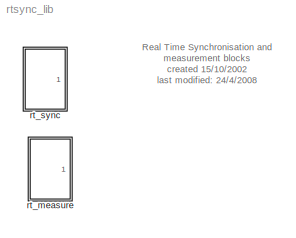
MODEL rtsync_lib
KIND library
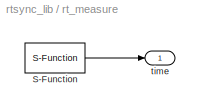
BLOCK [SubSystem] rt_measure
  FunctionWithSeparateData = off
  MaskCallbackString = ||
  MaskDescription = Real time measurement block.\nParameter: Ts = discrete sample time\noutput: actual time between samples.
  MaskDisplay = fprintf('Real\\n Time\\n measure')
  MaskEnableString = on,on,on
  MaskHideContents = off
  MaskIconFrame = on
  MaskIconOpaque = on
  MaskIconRotate = none
  MaskIconUnits = autoscale
  MaskInitialization = load_system simulink\n%---------------------------------------------------------------------------\n% Ts Output\nblock = 'time';\nsystem_block = [gcb '/' block];\nsrcblock= 'S-Function';\nsystem_srcblock= [gcb '/' srcblock];\npos=get_param(system_block,'position');\nblocktype=get_param(system_block,'blocktype');\n% Check the value selected \n% Get the mask parameter values. This is a cell array of...<+674ch>
  MaskPromptString = Sample Time|Strict Sample time|Enable output
  MaskSelfModifiable = on
  MaskStyleString = edit,checkbox,checkbox
  MaskTabNameString = ,,
  MaskToolTipString = on,on,on
  MaskTunableValueString = on,on,on
  MaskValueString = Ts|off|on
  MaskVarAliasString = ,,
  MaskVariables = Ts=@1;strict=@2;outflag=@3;
  MaskVisibilityString = on,on,on
  MinAlgLoopOccurrences = off
  Opaque = off
  Ports = [0, 1]
  PropExecContextOutsideSubsystem = off
  RTWSystemCode = Auto
  RequestExecContextInheritance = off
BLOCK [S-Function] rt_measure/S-Function
  EnableBusSupport = off
  FunctionName = sf_rtmeasure
  Parameters = Ts,strict
  Ports = [0, 1]
BLOCK [Outport] rt_measure/time
  IconDisplay = Port number
  OutDataType = sfix(16)
  OutScaling = 2^0
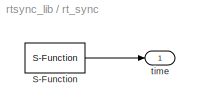
BLOCK [SubSystem] rt_sync
  FunctionWithSeparateData = off
  MaskCallbackString = ||
  MaskDescription = Real time synchronisation block.\nParameter: Ts = discrete sample time\noptional output: actual time between samples.
  MaskDisplay = fprintf('Real\\n Time\\n sync')
  MaskEnableString = on,on,on
  MaskHideContents = off
  MaskIconFrame = on
  MaskIconOpaque = on
  MaskIconRotate = none
  MaskIconUnits = autoscale
  MaskInitialization = load_system simulink\n%---------------------------------------------------------------------------\n% Ts Output\nblock = 'time';\nsystem_block = [gcb '/' block];\nsrcblock= 'S-Function';\nsystem_srcblock= [gcb '/' srcblock];\npos=get_param(system_block,'position');\nblocktype=get_param(system_block,'blocktype');\n% Check the value selected \n% Get the mask parameter values. This is a cell array of...<+674ch>
  MaskPromptString = Sample Time|Strict Sample time|Enable output
  MaskSelfModifiable = on
  MaskStyleString = edit,checkbox,checkbox
  MaskTabNameString = ,,
  MaskToolTipString = on,on,on
  MaskTunableValueString = on,on,on
  MaskValueString = Ts|off|on
  MaskVarAliasString = ,,
  MaskVariables = Ts=@1;strict=@2;outflag=@3;
  MaskVisibilityString = on,on,on
  MinAlgLoopOccurrences = off
  Opaque = off
  Ports = [0, 1]
  PropExecContextOutsideSubsystem = off
  RTWSystemCode = Auto
  RequestExecContextInheritance = off
BLOCK [S-Function] rt_sync/S-Function
  EnableBusSupport = off
  FunctionName = sf_rtsync
  Parameters = Ts,strict
  Ports = [0, 1]
BLOCK [Outport] rt_sync/time
  IconDisplay = Port number
  OutDataType = sfix(16)
  OutScaling = 2^0
ANNOTATION (root): Real Time Synchronisation and \nmeasurement blocks\ncreated 15/10/2002\nlast modified: 24/4/2008
LINE rt_measure/S-Function:1 -> rt_measure/time:1
LINE rt_sync/S-Function:1 -> rt_sync/time:1
